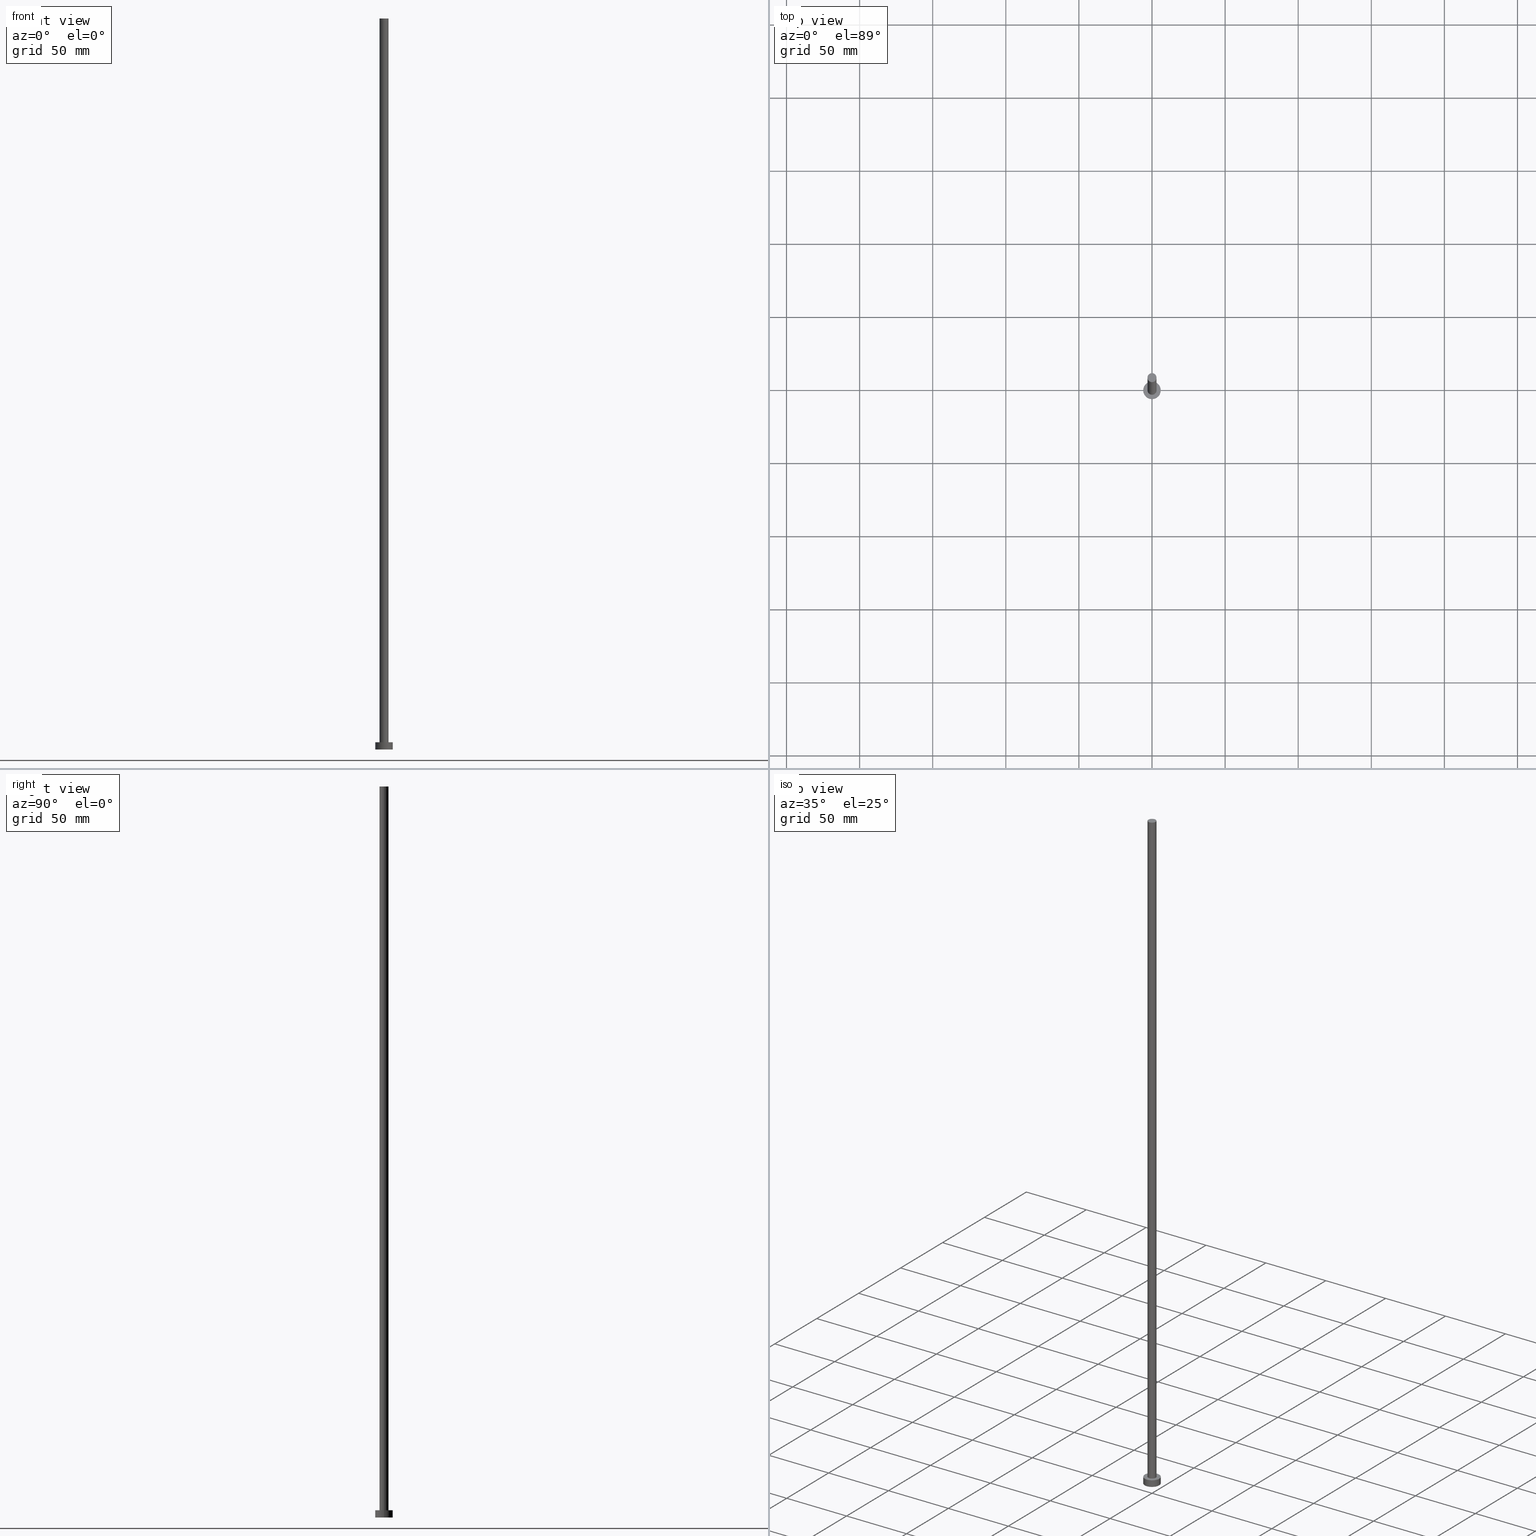
[diagram: canonical four-view strip — front | top / right | iso, engineering-drawing reading convention]
A machine part, canonical four-view strip (front | top / right | iso — engineering-drawing reading convention). The complete STEP part file that produces these views, byte-faithful:
ISO-10303-21;
HEADER;
FILE_DESCRIPTION (( 'STEP AP203' ),
    '1' );
FILE_NAME ('0aed.STEP',
    '2023-02-13T15:19:42',
    ( '' ),
    ( '' ),
    'SwSTEP 2.0',
    'SolidWorks 2019',
    '' );
FILE_SCHEMA (( 'CONFIG_CONTROL_DESIGN' ));
ENDSEC;

DATA;
#1 = CC_DESIGN_PERSON_AND_ORGANIZATION_ASSIGNMENT ( #237, #212, ( #179 ) ) ;
#2 = DATE_AND_TIME ( #109, #206 ) ;
#3 = DIRECTION ( 'NONE',  ( -0.000000000000000000, -0.000000000000000000, -1.000000000000000000 ) ) ;
#4 = AXIS2_PLACEMENT_3D ( 'NONE', #99, #139, #188 ) ;
#5 = EDGE_CURVE ( 'NONE', #193, #74, #104, .T. ) ;
#6 = ADVANCED_FACE ( 'NONE', ( #232 ), #65, .T. ) ;
#7 = DATE_AND_TIME ( #204, #130 ) ;
#8 = DIRECTION ( 'NONE',  ( -0.000000000000000000, -0.000000000000000000, -1.000000000000000000 ) ) ;
#9 = PRODUCT ( '0aed', '0aed', '', ( #47 ) ) ;
#10 = PLANE ( 'NONE',  #221 ) ;
#11 = ORIENTED_EDGE ( 'NONE', *, *, #5, .F. ) ;
#12 = AXIS2_PLACEMENT_3D ( 'NONE', #114, #54, #184 ) ;
#13 = CARTESIAN_POINT ( 'NONE',  ( 3.100000000000000089, 3.796405077356794918E-16, 500.0000000000000000 ) ) ;
#14 = ORIENTED_EDGE ( 'NONE', *, *, #227, .F. ) ;
#15 = APPROVAL_DATE_TIME ( #158, #187 ) ;
#16 =( LENGTH_UNIT ( ) NAMED_UNIT ( * ) SI_UNIT ( .MILLI., .METRE. ) );
#17 = ORIENTED_EDGE ( 'NONE', *, *, #94, .F. ) ;
#18 = DIRECTION ( 'NONE',  ( 1.000000000000000000, 0.000000000000000000, -0.000000000000000000 ) ) ;
#19 = ORIENTED_EDGE ( 'NONE', *, *, #117, .T. ) ;
#20 = PRODUCT_DEFINITION ( 'NEZN�M�', '', #179, #180 ) ;
#21 = DIRECTION ( 'NONE',  ( -0.000000000000000000, -0.000000000000000000, -1.000000000000000000 ) ) ;
#22 = PERSON_AND_ORGANIZATION ( #254, #124 ) ;
#23 = ADVANCED_BREP_SHAPE_REPRESENTATION ( '0aed', ( #198, #42 ), #219 ) ;
#24 = CC_DESIGN_PERSON_AND_ORGANIZATION_ASSIGNMENT ( #26, #255, ( #20 ) ) ;
#25 = AXIS2_PLACEMENT_3D ( 'NONE', #103, #225, #72 ) ;
#26 = PERSON_AND_ORGANIZATION ( #254, #124 ) ;
#27 = VECTOR ( 'NONE', #46, 1000.000000000000000 ) ;
#28 = AXIS2_PLACEMENT_3D ( 'NONE', #38, #135, #209 ) ;
#29 = APPROVAL_STATUS ( 'not_yet_approved' ) ;
#30 = VECTOR ( 'NONE', #8, 1000.000000000000000 ) ;
#31 = CIRCLE ( 'NONE', #4, 6.000000000000000888 ) ;
#32 = DIRECTION ( 'NONE',  ( -0.000000000000000000, -0.000000000000000000, -1.000000000000000000 ) ) ;
#33 = CARTESIAN_POINT ( 'NONE',  ( 0.000000000000000000, 0.000000000000000000, 5.000000000000000000 ) ) ;
#34 = CC_DESIGN_APPROVAL ( #141, ( #20 ) ) ;
#35 = FACE_OUTER_BOUND ( 'NONE', #175, .T. ) ;
#36 = ORIENTED_EDGE ( 'NONE', *, *, #123, .T. ) ;
#37 = APPROVAL_STATUS ( 'not_yet_approved' ) ;
#38 = CARTESIAN_POINT ( 'NONE',  ( 0.000000000000000000, 0.000000000000000000, 5.000000000000000000 ) ) ;
#39 = EDGE_LOOP ( 'NONE', ( #11, #142, #189, #211 ) ) ;
#40 = CARTESIAN_POINT ( 'NONE',  ( 6.000000000000000888, 7.347880794884120722E-16, 0.000000000000000000 ) ) ;
#41 = ORIENTED_EDGE ( 'NONE', *, *, #117, .F. ) ;
#42 = AXIS2_PLACEMENT_3D ( 'NONE', #107, #160, #122 ) ;
#43 = DIRECTION ( 'NONE',  ( -0.000000000000000000, -0.000000000000000000, -1.000000000000000000 ) ) ;
#44 = ORIENTED_EDGE ( 'NONE', *, *, #123, .F. ) ;
#45 = CLOSED_SHELL ( 'NONE', ( #134, #6, #51, #217, #191, #207, #210 ) ) ;
#46 = DIRECTION ( 'NONE',  ( -0.000000000000000000, -0.000000000000000000, -1.000000000000000000 ) ) ;
#47 = MECHANICAL_CONTEXT ( 'NONE', #203, 'mechanical' ) ;
#48 =( NAMED_UNIT ( * ) PLANE_ANGLE_UNIT ( ) SI_UNIT ( $, .RADIAN. ) );
#49 = COORDINATED_UNIVERSAL_TIME_OFFSET ( 1, 0, .AHEAD. ) ;
#50 = AXIS2_PLACEMENT_3D ( 'NONE', #174, #213, #244 ) ;
#51 = ADVANCED_FACE ( 'NONE', ( #186 ), #157, .T. ) ;
#52 = CARTESIAN_POINT ( 'NONE',  ( -6.000000000000000888, 0.000000000000000000, 5.000000000000000000 ) ) ;
#53 = CC_DESIGN_SECURITY_CLASSIFICATION ( #91, ( #179 ) ) ;
#54 = DIRECTION ( 'NONE',  ( 0.000000000000000000, 0.000000000000000000, 1.000000000000000000 ) ) ;
#55 = CIRCLE ( 'NONE', #12, 3.100000000000000089 ) ;
#56 = FACE_OUTER_BOUND ( 'NONE', #173, .T. ) ;
#57 = ORIENTED_EDGE ( 'NONE', *, *, #62, .F. ) ;
#58 = DIRECTION ( 'NONE',  ( -1.000000000000000000, 0.000000000000000000, 0.000000000000000000 ) ) ;
#59 = ORIENTED_EDGE ( 'NONE', *, *, #196, .T. ) ;
#60 = FACE_OUTER_BOUND ( 'NONE', #39, .T. ) ;
#61 = CARTESIAN_POINT ( 'NONE',  ( 0.000000000000000000, 0.000000000000000000, 5.000000000000000000 ) ) ;
#62 = EDGE_CURVE ( 'NONE', #133, #250, #144, .T. ) ;
#63 = FACE_OUTER_BOUND ( 'NONE', #138, .T. ) ;
#64 = CARTESIAN_POINT ( 'NONE',  ( 3.100000000000000089, 3.796405077356794918E-16, 500.0000000000000000 ) ) ;
#65 = CYLINDRICAL_SURFACE ( 'NONE', #143, 6.000000000000000888 ) ;
#66 = CIRCLE ( 'NONE', #50, 6.000000000000000888 ) ;
#67 = AXIS2_PLACEMENT_3D ( 'NONE', #85, #86, #163 ) ;
#68 = DATE_TIME_ROLE ( 'creation_date' ) ;
#69 = EDGE_CURVE ( 'NONE', #208, #193, #126, .T. ) ;
#70 = APPROVAL_PERSON_ORGANIZATION ( #147, #246, #200 ) ;
#71 = LOCAL_TIME ( 16, 19, 42.00000000000000000, #183 ) ;
#72 = DIRECTION ( 'NONE',  ( 1.000000000000000000, 0.000000000000000000, 0.000000000000000000 ) ) ;
#73 = VECTOR ( 'NONE', #242, 1000.000000000000000 ) ;
#74 = VERTEX_POINT ( 'NONE', #238 ) ;
#75 = DIRECTION ( 'NONE',  ( 1.000000000000000000, 0.000000000000000000, 0.000000000000000000 ) ) ;
#76 = ORIENTED_EDGE ( 'NONE', *, *, #96, .T. ) ;
#77 = CARTESIAN_POINT ( 'NONE',  ( 0.000000000000000000, 0.000000000000000000, 500.0000000000000000 ) ) ;
#78 = DIRECTION ( 'NONE',  ( -1.000000000000000000, 0.000000000000000000, 0.000000000000000000 ) ) ;
#79 = PERSON_AND_ORGANIZATION_ROLE ( 'classification_officer' ) ;
#80 = LINE ( 'NONE', #115, #30 ) ;
#81 = CIRCLE ( 'NONE', #202, 3.100000000000000089 ) ;
#82 = VERTEX_POINT ( 'NONE', #201 ) ;
#83 = CIRCLE ( 'NONE', #28, 3.100000000000000089 ) ;
#84 = CC_DESIGN_DATE_AND_TIME_ASSIGNMENT ( #7, #136, ( #91 ) ) ;
#85 = CARTESIAN_POINT ( 'NONE',  ( 0.000000000000000000, 0.000000000000000000, 500.0000000000000000 ) ) ;
#86 = DIRECTION ( 'NONE',  ( 0.000000000000000000, 0.000000000000000000, 1.000000000000000000 ) ) ;
#87 = COORDINATED_UNIVERSAL_TIME_OFFSET ( 1, 0, .AHEAD. ) ;
#88 = LINE ( 'NONE', #52, #243 ) ;
#89 = APPROVAL_DATE_TIME ( #2, #246 ) ;
#90 = CARTESIAN_POINT ( 'NONE',  ( 0.000000000000000000, 0.000000000000000000, 500.0000000000000000 ) ) ;
#91 = SECURITY_CLASSIFICATION ( '', '', #95 ) ;
#92 = PLANE ( 'NONE',  #236 ) ;
#93 = VERTEX_POINT ( 'NONE', #110 ) ;
#94 = EDGE_CURVE ( 'NONE', #93, #82, #88, .T. ) ;
#95 = SECURITY_CLASSIFICATION_LEVEL ( 'unclassified' ) ;
#96 = EDGE_CURVE ( 'NONE', #193, #208, #81, .T. ) ;
#97 = DIRECTION ( 'NONE',  ( 0.000000000000000000, 0.000000000000000000, 1.000000000000000000 ) ) ;
#98 = EDGE_LOOP ( 'NONE', ( #44, #251, #100, #17 ) ) ;
#99 = CARTESIAN_POINT ( 'NONE',  ( 0.000000000000000000, 0.000000000000000000, 5.000000000000000000 ) ) ;
#100 = ORIENTED_EDGE ( 'NONE', *, *, #239, .T. ) ;
#101 = LOCAL_TIME ( 16, 19, 42.00000000000000000, #49 ) ;
#102 = FACE_OUTER_BOUND ( 'NONE', #177, .T. ) ;
#103 = CARTESIAN_POINT ( 'NONE',  ( 0.000000000000000000, 0.000000000000000000, 0.000000000000000000 ) ) ;
#104 = LINE ( 'NONE', #64, #73 ) ;
#105 = CC_DESIGN_APPROVAL ( #187, ( #91 ) ) ;
#106 = EDGE_CURVE ( 'NONE', #208, #119, #80, .T. ) ;
#107 = CARTESIAN_POINT ( 'NONE',  ( 0.000000000000000000, 0.000000000000000000, 0.000000000000000000 ) ) ;
#108 = APPROVAL_PERSON_ORGANIZATION ( #113, #187, #190 ) ;
#109 = CALENDAR_DATE ( 2023, 13, 2 ) ;
#110 = CARTESIAN_POINT ( 'NONE',  ( -6.000000000000000888, 0.000000000000000000, 5.000000000000000000 ) ) ;
#111 = AXIS2_PLACEMENT_3D ( 'NONE', #118, #172, #194 ) ;
#112 = DIRECTION ( 'NONE',  ( 0.000000000000000000, 0.000000000000000000, 1.000000000000000000 ) ) ;
#113 = PERSON_AND_ORGANIZATION ( #254, #124 ) ;
#114 = CARTESIAN_POINT ( 'NONE',  ( 0.000000000000000000, 0.000000000000000000, 5.000000000000000000 ) ) ;
#115 = CARTESIAN_POINT ( 'NONE',  ( -3.100000000000000089, 0.000000000000000000, 500.0000000000000000 ) ) ;
#116 = DIRECTION ( 'NONE',  ( -0.000000000000000000, -0.000000000000000000, -1.000000000000000000 ) ) ;
#117 = EDGE_CURVE ( 'NONE', #74, #119, #55, .T. ) ;
#118 = CARTESIAN_POINT ( 'NONE',  ( 0.000000000000000000, 0.000000000000000000, 500.0000000000000000 ) ) ;
#119 = VERTEX_POINT ( 'NONE', #230 ) ;
#120 = CIRCLE ( 'NONE', #25, 6.000000000000000888 ) ;
#121 = CYLINDRICAL_SURFACE ( 'NONE', #149, 3.100000000000000089 ) ;
#122 = DIRECTION ( 'NONE',  ( 1.000000000000000000, 0.000000000000000000, 0.000000000000000000 ) ) ;
#123 = EDGE_CURVE ( 'NONE', #133, #93, #31, .T. ) ;
#124 = ORGANIZATION ( 'NEUR�EN�', 'NEUR�EN�', '' ) ;
#125 = DIRECTION ( 'NONE',  ( -1.000000000000000000, 0.000000000000000000, 0.000000000000000000 ) ) ;
#126 = CIRCLE ( 'NONE', #67, 3.100000000000000089 ) ;
#127 = PRODUCT_DEFINITION_SHAPE ( 'NONE', 'NONE',  #20 ) ;
#128 = DATE_AND_TIME ( #129, #101 ) ;
#129 = CALENDAR_DATE ( 2023, 13, 2 ) ;
#130 = LOCAL_TIME ( 16, 19, 42.00000000000000000, #131 ) ;
#131 = COORDINATED_UNIVERSAL_TIME_OFFSET ( 1, 0, .AHEAD. ) ;
#132 = CYLINDRICAL_SURFACE ( 'NONE', #162, 3.100000000000000089 ) ;
#133 = VERTEX_POINT ( 'NONE', #154 ) ;
#134 = ADVANCED_FACE ( 'NONE', ( #63 ), #121, .T. ) ;
#135 = DIRECTION ( 'NONE',  ( 0.000000000000000000, 0.000000000000000000, 1.000000000000000000 ) ) ;
#136 = DATE_TIME_ROLE ( 'classification_date' ) ;
#137 = DIRECTION ( 'NONE',  ( 1.000000000000000000, 0.000000000000000000, -0.000000000000000000 ) ) ;
#138 = EDGE_LOOP ( 'NONE', ( #168, #195, #19, #140 ) ) ;
#139 = DIRECTION ( 'NONE',  ( 0.000000000000000000, 0.000000000000000000, 1.000000000000000000 ) ) ;
#140 = ORIENTED_EDGE ( 'NONE', *, *, #106, .F. ) ;
#141 = APPROVAL ( #29, 'NEUR�EN�' ) ;
#142 = ORIENTED_EDGE ( 'NONE', *, *, #69, .F. ) ;
#143 = AXIS2_PLACEMENT_3D ( 'NONE', #33, #116, #78 ) ;
#144 = LINE ( 'NONE', #216, #27 ) ;
#145 = PERSON_AND_ORGANIZATION_ROLE ( 'design_owner' ) ;
#146 = APPROVAL_ROLE ( '' ) ;
#147 = PERSON_AND_ORGANIZATION ( #254, #124 ) ;
#148 = PRODUCT_RELATED_PRODUCT_CATEGORY ( 'detail', '', ( #9 ) ) ;
#149 = AXIS2_PLACEMENT_3D ( 'NONE', #77, #43, #159 ) ;
#150 = CC_DESIGN_PERSON_AND_ORGANIZATION_ASSIGNMENT ( #182, #240, ( #179 ) ) ;
#151 = DIRECTION ( 'NONE',  ( 0.000000000000000000, 0.000000000000000000, 1.000000000000000000 ) ) ;
#152 = CARTESIAN_POINT ( 'NONE',  ( 0.000000000000000000, 0.000000000000000000, 0.000000000000000000 ) ) ;
#153 = APPLICATION_CONTEXT ( 'configuration controlled 3d designs of mechanical parts and assemblies' ) ;
#154 = CARTESIAN_POINT ( 'NONE',  ( 6.000000000000000888, 7.347880794884120722E-16, 5.000000000000000000 ) ) ;
#155 = ORIENTED_EDGE ( 'NONE', *, *, #94, .T. ) ;
#156 = CARTESIAN_POINT ( 'NONE',  ( 0.000000000000000000, 0.000000000000000000, 500.0000000000000000 ) ) ;
#157 = CYLINDRICAL_SURFACE ( 'NONE', #169, 6.000000000000000888 ) ;
#158 = DATE_AND_TIME ( #224, #71 ) ;
#159 = DIRECTION ( 'NONE',  ( -1.000000000000000000, 0.000000000000000000, 0.000000000000000000 ) ) ;
#160 = DIRECTION ( 'NONE',  ( 0.000000000000000000, 0.000000000000000000, 1.000000000000000000 ) ) ;
#161 = ORIENTED_EDGE ( 'NONE', *, *, #196, .F. ) ;
#162 = AXIS2_PLACEMENT_3D ( 'NONE', #156, #32, #58 ) ;
#163 = DIRECTION ( 'NONE',  ( 1.000000000000000000, 0.000000000000000000, 0.000000000000000000 ) ) ;
#164 = APPLICATION_PROTOCOL_DEFINITION ( 'international standard', 'config_control_design', 1994, #153 ) ;
#165 = DATE_AND_TIME ( #235, #234 ) ;
#166 = PERSON_AND_ORGANIZATION ( #254, #124 ) ;
#167 = CARTESIAN_POINT ( 'NONE',  ( 0.000000000000000000, 0.000000000000000000, 5.000000000000000000 ) ) ;
#168 = ORIENTED_EDGE ( 'NONE', *, *, #96, .F. ) ;
#169 = AXIS2_PLACEMENT_3D ( 'NONE', #61, #21, #125 ) ;
#170 = CARTESIAN_POINT ( 'NONE',  ( 0.000000000000000000, 0.000000000000000000, 0.000000000000000000 ) ) ;
#171 = PERSON_AND_ORGANIZATION ( #254, #124 ) ;
#172 = DIRECTION ( 'NONE',  ( 0.000000000000000000, 0.000000000000000000, 1.000000000000000000 ) ) ;
#173 = EDGE_LOOP ( 'NONE', ( #223, #76 ) ) ;
#174 = CARTESIAN_POINT ( 'NONE',  ( 0.000000000000000000, 0.000000000000000000, 5.000000000000000000 ) ) ;
#175 = EDGE_LOOP ( 'NONE', ( #59, #36 ) ) ;
#176 = CARTESIAN_POINT ( 'NONE',  ( -3.100000000000000089, 0.000000000000000000, 500.0000000000000000 ) ) ;
#177 = EDGE_LOOP ( 'NONE', ( #14, #192 ) ) ;
#178 = APPLICATION_PROTOCOL_DEFINITION ( 'international standard', 'config_control_design', 1994, #203 ) ;
#179 = PRODUCT_DEFINITION_FORMATION_WITH_SPECIFIED_SOURCE ( 'LIBOVOLN�', '', #9, .NOT_KNOWN. ) ;
#180 = DESIGN_CONTEXT ( 'detailed design', #153, 'design' ) ;
#181 = COORDINATED_UNIVERSAL_TIME_OFFSET ( 1, 0, .AHEAD. ) ;
#182 = PERSON_AND_ORGANIZATION ( #254, #124 ) ;
#183 = COORDINATED_UNIVERSAL_TIME_OFFSET ( 1, 0, .AHEAD. ) ;
#184 = DIRECTION ( 'NONE',  ( 1.000000000000000000, 0.000000000000000000, 0.000000000000000000 ) ) ;
#185 = CIRCLE ( 'NONE', #247, 6.000000000000000888 ) ;
#186 = FACE_OUTER_BOUND ( 'NONE', #226, .T. ) ;
#187 = APPROVAL ( #37, 'NEUR�EN�' ) ;
#188 = DIRECTION ( 'NONE',  ( 1.000000000000000000, 0.000000000000000000, 0.000000000000000000 ) ) ;
#189 = ORIENTED_EDGE ( 'NONE', *, *, #106, .T. ) ;
#190 = APPROVAL_ROLE ( '' ) ;
#191 = ADVANCED_FACE ( 'NONE', ( #102 ), #92, .F. ) ;
#192 = ORIENTED_EDGE ( 'NONE', *, *, #239, .F. ) ;
#193 = VERTEX_POINT ( 'NONE', #13 ) ;
#194 = DIRECTION ( 'NONE',  ( 1.000000000000000000, 0.000000000000000000, -0.000000000000000000 ) ) ;
#195 = ORIENTED_EDGE ( 'NONE', *, *, #5, .T. ) ;
#196 = EDGE_CURVE ( 'NONE', #93, #133, #66, .T. ) ;
#197 = CC_DESIGN_PERSON_AND_ORGANIZATION_ASSIGNMENT ( #22, #145, ( #9 ) ) ;
#198 = MANIFOLD_SOLID_BREP ( 'P�idat vysunut�m3', #45 ) ;
#199 = APPROVAL_DATE_TIME ( #128, #141 ) ;
#200 = APPROVAL_ROLE ( '' ) ;
#201 = CARTESIAN_POINT ( 'NONE',  ( -6.000000000000000888, 0.000000000000000000, 0.000000000000000000 ) ) ;
#202 = AXIS2_PLACEMENT_3D ( 'NONE', #90, #112, #222 ) ;
#203 = APPLICATION_CONTEXT ( 'configuration controlled 3d designs of mechanical parts and assemblies' ) ;
#204 = CALENDAR_DATE ( 2023, 13, 2 ) ;
#205 = PLANE ( 'NONE',  #111 ) ;
#206 = LOCAL_TIME ( 16, 19, 42.00000000000000000, #181 ) ;
#207 = ADVANCED_FACE ( 'NONE', ( #60 ), #132, .T. ) ;
#208 = VERTEX_POINT ( 'NONE', #176 ) ;
#209 = DIRECTION ( 'NONE',  ( 1.000000000000000000, 0.000000000000000000, 0.000000000000000000 ) ) ;
#210 = ADVANCED_FACE ( 'NONE', ( #56 ), #205, .T. ) ;
#211 = ORIENTED_EDGE ( 'NONE', *, *, #252, .T. ) ;
#212 = PERSON_AND_ORGANIZATION_ROLE ( 'creator' ) ;
#213 = DIRECTION ( 'NONE',  ( 0.000000000000000000, 0.000000000000000000, 1.000000000000000000 ) ) ;
#214 = CC_DESIGN_APPROVAL ( #246, ( #179 ) ) ;
#215 = CC_DESIGN_DATE_AND_TIME_ASSIGNMENT ( #165, #68, ( #20 ) ) ;
#216 = CARTESIAN_POINT ( 'NONE',  ( 6.000000000000000888, 7.347880794884120722E-16, 5.000000000000000000 ) ) ;
#217 = ADVANCED_FACE ( 'NONE', ( #228, #35 ), #10, .T. ) ;
#218 =( NAMED_UNIT ( * ) SI_UNIT ( $, .STERADIAN. ) SOLID_ANGLE_UNIT ( ) );
#219 =( GEOMETRIC_REPRESENTATION_CONTEXT ( 3 ) GLOBAL_UNCERTAINTY_ASSIGNED_CONTEXT ( ( #249 ) ) GLOBAL_UNIT_ASSIGNED_CONTEXT ( ( #16, #48, #218 ) ) REPRESENTATION_CONTEXT ( 'NONE', 'WORKASPACE' ) );
#220 = APPROVAL_STATUS ( 'not_yet_approved' ) ;
#221 = AXIS2_PLACEMENT_3D ( 'NONE', #167, #97, #18 ) ;
#222 = DIRECTION ( 'NONE',  ( 1.000000000000000000, 0.000000000000000000, 0.000000000000000000 ) ) ;
#223 = ORIENTED_EDGE ( 'NONE', *, *, #69, .T. ) ;
#224 = CALENDAR_DATE ( 2023, 13, 2 ) ;
#225 = DIRECTION ( 'NONE',  ( 0.000000000000000000, 0.000000000000000000, 1.000000000000000000 ) ) ;
#226 = EDGE_LOOP ( 'NONE', ( #57, #161, #155, #231 ) ) ;
#227 = EDGE_CURVE ( 'NONE', #82, #250, #120, .T. ) ;
#228 = FACE_BOUND ( 'NONE', #248, .T. ) ;
#229 = ORIENTED_EDGE ( 'NONE', *, *, #252, .F. ) ;
#230 = CARTESIAN_POINT ( 'NONE',  ( -3.100000000000000089, 0.000000000000000000, 5.000000000000000000 ) ) ;
#231 = ORIENTED_EDGE ( 'NONE', *, *, #227, .T. ) ;
#232 = FACE_OUTER_BOUND ( 'NONE', #98, .T. ) ;
#233 = CC_DESIGN_PERSON_AND_ORGANIZATION_ASSIGNMENT ( #171, #79, ( #91 ) ) ;
#234 = LOCAL_TIME ( 16, 19, 42.00000000000000000, #87 ) ;
#235 = CALENDAR_DATE ( 2023, 13, 2 ) ;
#236 = AXIS2_PLACEMENT_3D ( 'NONE', #152, #241, #137 ) ;
#237 = PERSON_AND_ORGANIZATION ( #254, #124 ) ;
#238 = CARTESIAN_POINT ( 'NONE',  ( 3.100000000000000089, 3.796405077356794918E-16, 5.000000000000000000 ) ) ;
#239 = EDGE_CURVE ( 'NONE', #250, #82, #185, .T. ) ;
#240 = PERSON_AND_ORGANIZATION_ROLE ( 'design_supplier' ) ;
#241 = DIRECTION ( 'NONE',  ( 0.000000000000000000, 0.000000000000000000, 1.000000000000000000 ) ) ;
#242 = DIRECTION ( 'NONE',  ( -0.000000000000000000, -0.000000000000000000, -1.000000000000000000 ) ) ;
#243 = VECTOR ( 'NONE', #3, 1000.000000000000000 ) ;
#244 = DIRECTION ( 'NONE',  ( 1.000000000000000000, 0.000000000000000000, 0.000000000000000000 ) ) ;
#245 = SHAPE_DEFINITION_REPRESENTATION ( #127, #23 ) ;
#246 = APPROVAL ( #220, 'NEUR�EN�' ) ;
#247 = AXIS2_PLACEMENT_3D ( 'NONE', #170, #151, #75 ) ;
#248 = EDGE_LOOP ( 'NONE', ( #229, #41 ) ) ;
#249 = UNCERTAINTY_MEASURE_WITH_UNIT (LENGTH_MEASURE( 1.000000000000000082E-05 ), #16, 'distance_accuracy_value', 'NONE');
#250 = VERTEX_POINT ( 'NONE', #40 ) ;
#251 = ORIENTED_EDGE ( 'NONE', *, *, #62, .T. ) ;
#252 = EDGE_CURVE ( 'NONE', #119, #74, #83, .T. ) ;
#253 = APPROVAL_PERSON_ORGANIZATION ( #166, #141, #146 ) ;
#254 = PERSON ( 'NEUR�EN�', 'NEUR�EN�', 'NEUR�EN�', ('NEUR�EN�'), ('NEUR�EN�'), ('NEUR�EN�') ) ;
#255 = PERSON_AND_ORGANIZATION_ROLE ( 'creator' ) ;
ENDSEC;
END-ISO-10303-21;
